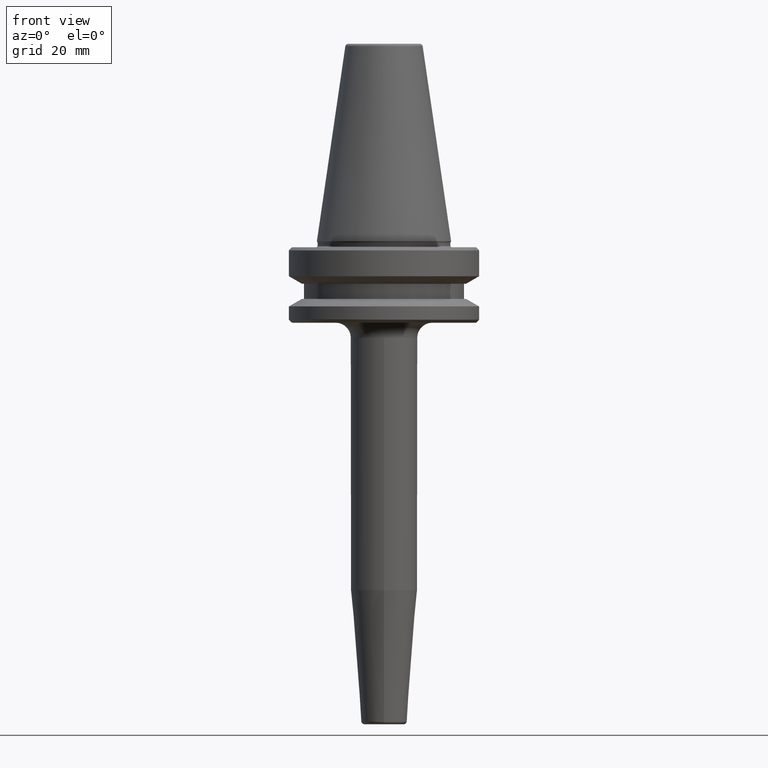
[diagram: clean part render]
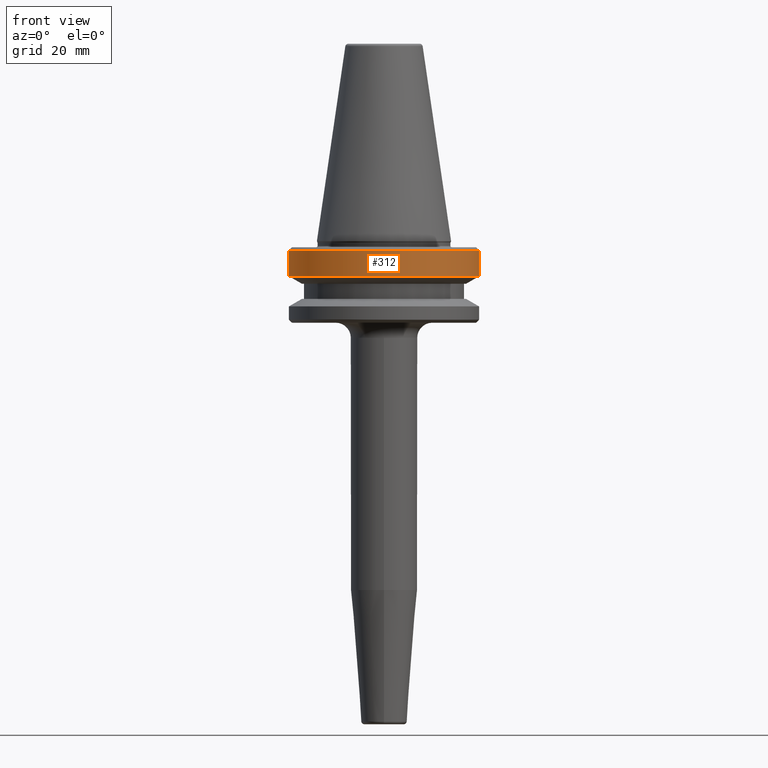
[diagram: same view with one face highlighted and labeled with its STEP entity id]
A machine part, front view. The second image highlights one B-rep face of the part: STEP entity #312.
In plain terms, the highlighted cylindrical surface (partial cylindrical patch) has radius 31.5 mm, axis along (-0, -0, 1).
Its self-contained STEP definition (entity closure, byte-faithful):
#86 = DIRECTION ( 'NONE',  ( -0.0000000000000000000, -0.0000000000000000000, 1.000000000000000000 ) ) ;
#134 = AXIS2_PLACEMENT_3D ( 'NONE', #471, #1245, #1152 ) ;
#147 = CYLINDRICAL_SURFACE ( 'NONE', #134, 31.50000000000000000 ) ;
#159 = VECTOR ( 'NONE', #843, 1000.000000000000000 ) ;
#183 = DIRECTION ( 'NONE',  ( -0.0000000000000000000, -0.0000000000000000000, 1.000000000000000000 ) ) ;
#311 = CARTESIAN_POINT ( 'NONE',  ( -31.49999999999999300, 3.857637417314161900E-015, -3.165685424949243700 ) ) ;
#312 = ADVANCED_FACE ( 'NONE', ( #1198 ), #147, .T. ) ;
#369 = CARTESIAN_POINT ( 'NONE',  ( 31.50000000000000000, 0.0000000000000000000, 69.75694866325665100 ) ) ;
#462 = LINE ( 'NONE', #369, #159 ) ;
#471 = CARTESIAN_POINT ( 'NONE',  ( 0.0000000000000000000, 0.0000000000000000000, 69.75694866325665100 ) ) ;
#497 = CIRCLE ( 'NONE', #984, 31.49999999999999300 ) ;
#518 = EDGE_CURVE ( 'NONE', #827, #664, #497, .T. ) ;
#539 = EDGE_CURVE ( 'NONE', #600, #827, #935, .T. ) ;
#561 = EDGE_CURVE ( 'NONE', #1217, #664, #462, .T. ) ;
#600 = VERTEX_POINT ( 'NONE', #1249 ) ;
#601 = CIRCLE ( 'NONE', #705, 31.50000000000000000 ) ;
#639 = EDGE_CURVE ( 'NONE', #600, #1217, #601, .T. ) ;
#664 = VERTEX_POINT ( 'NONE', #862 ) ;
#674 = CARTESIAN_POINT ( 'NONE',  ( 0.0000000000000000000, 0.0000000000000000000, -11.59985799368323700 ) ) ;
#685 = VECTOR ( 'NONE', #1014, 1000.000000000000000 ) ;
#705 = AXIS2_PLACEMENT_3D ( 'NONE', #674, #86, #777 ) ;
#732 = ORIENTED_EDGE ( 'NONE', *, *, #539, .F. ) ;
#772 = CARTESIAN_POINT ( 'NONE',  ( 0.0000000000000000000, 0.0000000000000000000, -3.165685424949243700 ) ) ;
#777 = DIRECTION ( 'NONE',  ( 1.000000000000000000, 0.0000000000000000000, 0.0000000000000000000 ) ) ;
#827 = VERTEX_POINT ( 'NONE', #311 ) ;
#843 = DIRECTION ( 'NONE',  ( -0.0000000000000000000, -0.0000000000000000000, 1.000000000000000000 ) ) ;
#862 = CARTESIAN_POINT ( 'NONE',  ( 31.49999999999999300, 0.0000000000000000000, -3.165685424949243700 ) ) ;
#869 = DIRECTION ( 'NONE',  ( 1.000000000000000000, 0.0000000000000000000, 0.0000000000000000000 ) ) ;
#935 = LINE ( 'NONE', #1171, #685 ) ;
#949 = ORIENTED_EDGE ( 'NONE', *, *, #518, .F. ) ;
#968 = ORIENTED_EDGE ( 'NONE', *, *, #561, .T. ) ;
#984 = AXIS2_PLACEMENT_3D ( 'NONE', #772, #183, #869 ) ;
#995 = CARTESIAN_POINT ( 'NONE',  ( 31.50000000000000000, 0.0000000000000000000, -11.59985799368323700 ) ) ;
#1014 = DIRECTION ( 'NONE',  ( -0.0000000000000000000, -0.0000000000000000000, 1.000000000000000000 ) ) ;
#1152 = DIRECTION ( 'NONE',  ( 1.000000000000000000, 0.0000000000000000000, 0.0000000000000000000 ) ) ;
#1171 = CARTESIAN_POINT ( 'NONE',  ( -31.50000000000000000, 3.857637417314162700E-015, 69.75694866325665100 ) ) ;
#1180 = EDGE_LOOP ( 'NONE', ( #732, #1220, #968, #949 ) ) ;
#1198 = FACE_OUTER_BOUND ( 'NONE', #1180, .T. ) ;
#1217 = VERTEX_POINT ( 'NONE', #995 ) ;
#1220 = ORIENTED_EDGE ( 'NONE', *, *, #639, .T. ) ;
#1245 = DIRECTION ( 'NONE',  ( -0.0000000000000000000, -0.0000000000000000000, 1.000000000000000000 ) ) ;
#1249 = CARTESIAN_POINT ( 'NONE',  ( -31.50000000000000000, 3.857637417314162700E-015, -11.59985799368323700 ) ) ;